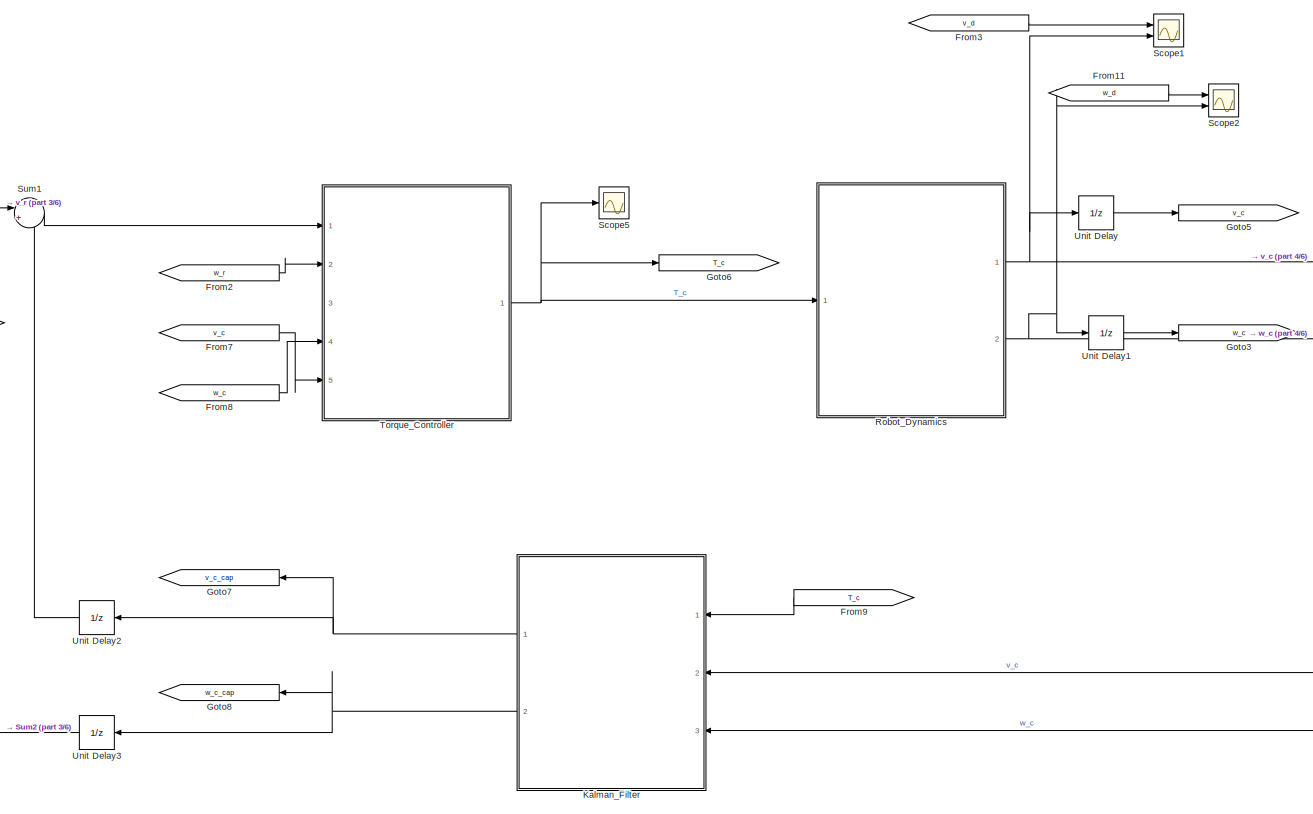
[diagram: root canvas - part 1/6, middle right region]
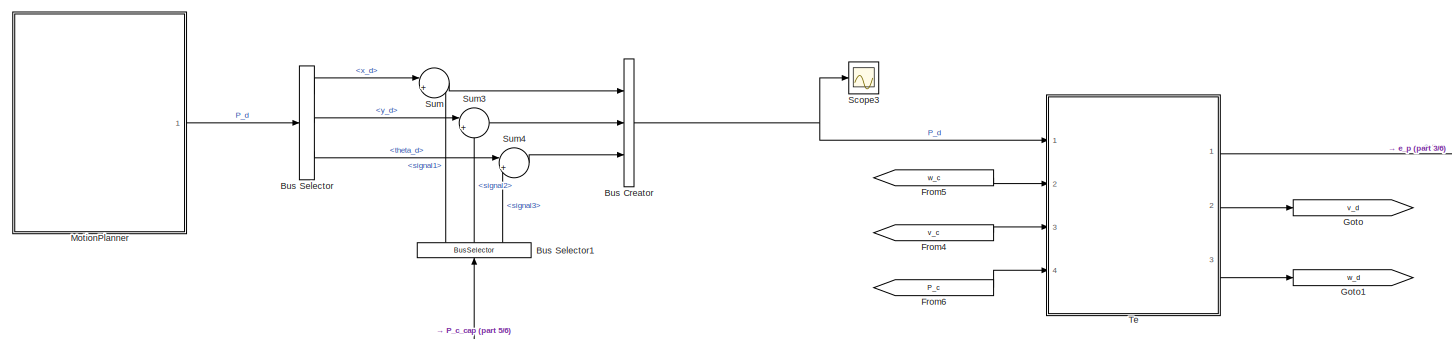
[diagram: root canvas - part 2/6, top left region]
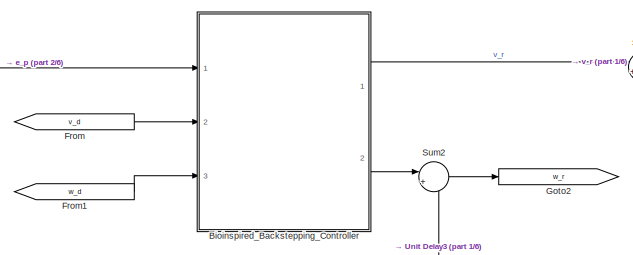
[diagram: root canvas - part 3/6, top center region]
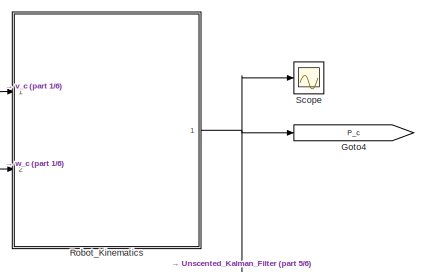
[diagram: root canvas - part 4/6, top right region]
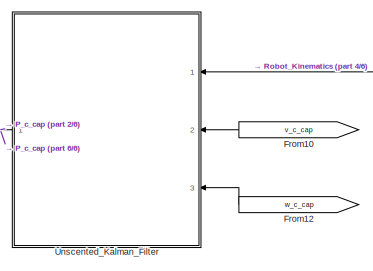
[diagram: root canvas - part 5/6, bottom center region]
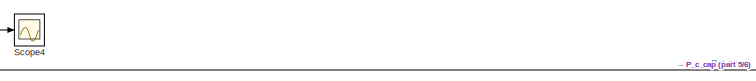
[diagram: root canvas - part 6/6, bottom left region]
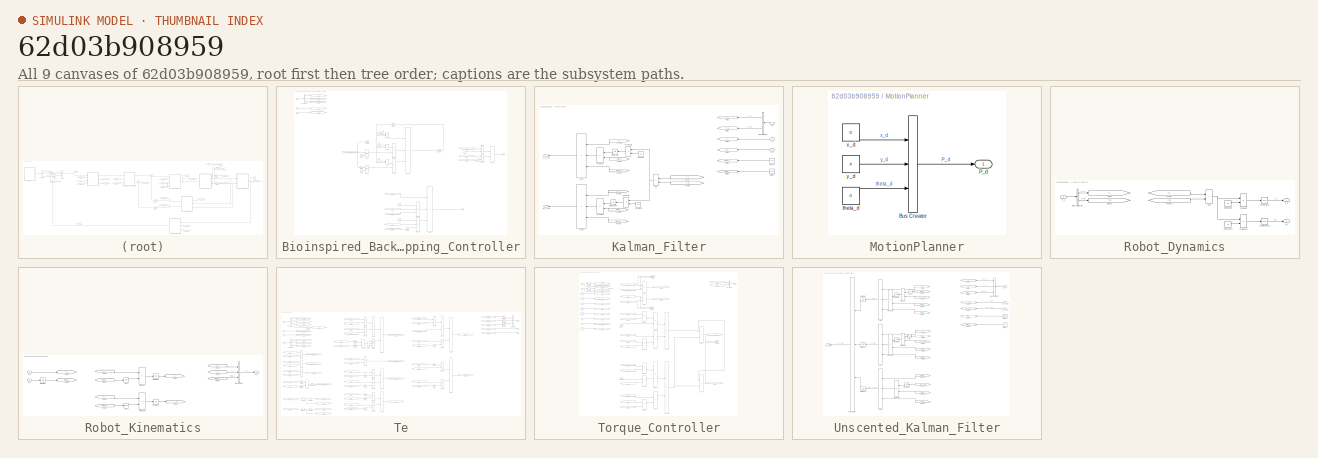
[diagram: thumbnail index - all 9 canvases of the model, root first then tree order]
MODEL slx_62d03b908959
KIND model
CONFIG AbsTol = auto
CONFIG EnableMultiTasking = off
CONFIG FixedStep = 0.01
CONFIG MaxStep = auto
CONFIG MinStep = auto
CONFIG RelTol = 1e-3
CONFIG SampleTimeConstraint = Unconstrained
CONFIG SolverName = FixedStepAuto
CONFIG StartTime = 0.0
CONFIG StopTime = 10
BLOCK [SubSystem] Bioinspired_Backstepping_Controller
  Ports = [3, 2]
  RequestExecContextInheritance = off
  TreatAsAtomicUnit = on
BLOCK [Constant] Bioinspired_Backstepping_Controller/A1
  Commented = on
  Value = 5
BLOCK [Sum] Bioinspired_Backstepping_Controller/Add1
  Commented = on
  IconShape = rectangular
  Inputs = +-
  Ports = [2, 1]
BLOCK [Sum] Bioinspired_Backstepping_Controller/Add2
  Commented = on
  IconShape = rectangular
  Ports = [2, 1]
BLOCK [Sum] Bioinspired_Backstepping_Controller/Add3
  Commented = on
  IconShape = rectangular
  Inputs = +++
  Ports = [3, 1]
BLOCK [Sum] Bioinspired_Backstepping_Controller/Add4
  IconShape = rectangular
  Ports = [2, 1]
BLOCK [Sum] Bioinspired_Backstepping_Controller/Add5
  IconShape = rectangular
  Inputs = +++
  Ports = [3, 1]
BLOCK [Constant] Bioinspired_Backstepping_Controller/B1
  Commented = on
  Value = 3
BLOCK [BusSelector] Bioinspired_Backstepping_Controller/Bus Selector
  OutputSignals = e_D,e_L,e_theta
  Ports = [1, 3]
BLOCK [Constant] Bioinspired_Backstepping_Controller/C1
BLOCK [Constant] Bioinspired_Backstepping_Controller/C2
  Value = 5
BLOCK [Constant] Bioinspired_Backstepping_Controller/C3
  Value = 2
BLOCK [Trigonometry] Bioinspired_Backstepping_Controller/Cos
  Operator = cos
  Ports = [1, 1]
BLOCK [Constant] Bioinspired_Backstepping_Controller/D1
  Commented = on
  Value = 3
BLOCK [From] Bioinspired_Backstepping_Controller/From
  GotoTag = v_d
BLOCK [From] Bioinspired_Backstepping_Controller/From1
  GotoTag = e_theta
BLOCK [From] Bioinspired_Backstepping_Controller/From2
  Commented = on
  GotoTag = e_D
BLOCK [From] Bioinspired_Backstepping_Controller/From3
  GotoTag = w_d
BLOCK [From] Bioinspired_Backstepping_Controller/From4
  GotoTag = v_d
BLOCK [From] Bioinspired_Backstepping_Controller/From5
  GotoTag = e_L
BLOCK [From] Bioinspired_Backstepping_Controller/From6
  GotoTag = v_d
BLOCK [From] Bioinspired_Backstepping_Controller/From7
  GotoTag = e_theta
BLOCK [From] Bioinspired_Backstepping_Controller/From8
  GotoTag = e_D
BLOCK [Gain] Bioinspired_Backstepping_Controller/Gain
  Commented = on
  Gain = -1
BLOCK [Goto] Bioinspired_Backstepping_Controller/Goto
  GotoTag = e_D
BLOCK [Goto] Bioinspired_Backstepping_Controller/Goto1
  GotoTag = e_L
BLOCK [Goto] Bioinspired_Backstepping_Controller/Goto2
  GotoTag = e_theta
BLOCK [Goto] Bioinspired_Backstepping_Controller/Goto3
  GotoTag = v_d
BLOCK [Goto] Bioinspired_Backstepping_Controller/Goto4
  GotoTag = w_d
BLOCK [Integrator] Bioinspired_Backstepping_Controller/Integrator
  Commented = on
  Ports = [1, 1]
BLOCK [MinMax] Bioinspired_Backstepping_Controller/Max
  Commented = on
  Function = max
  Inputs = 2
  Ports = [2, 1]
BLOCK [MinMax] Bioinspired_Backstepping_Controller/Max1
  Commented = on
  Function = max
  Inputs = 2
  Ports = [2, 1]
BLOCK [Gain] Bioinspired_Backstepping_Controller/Multiply
  Commented = on
  Gain = -1
BLOCK [Product] Bioinspired_Backstepping_Controller/Product
  Commented = on
  Ports = [2, 1]
BLOCK [Product] Bioinspired_Backstepping_Controller/Product1
  Commented = on
  Ports = [2, 1]
BLOCK [Product] Bioinspired_Backstepping_Controller/Product2
  Commented = on
  Ports = [2, 1]
BLOCK [Product] Bioinspired_Backstepping_Controller/Product3
  Ports = [2, 1]
BLOCK [Product] Bioinspired_Backstepping_Controller/Product4
  Inputs = 3
  Ports = [3, 1]
BLOCK [Product] Bioinspired_Backstepping_Controller/Product5
  Inputs = 3
  Ports = [3, 1]
BLOCK [Product] Bioinspired_Backstepping_Controller/Product6
  Ports = [2, 1]
BLOCK [Scope] Bioinspired_Backstepping_Controller/Scope
  Commented = on
  Floating = off
  NumInputPorts = 1
  Ports = [1]
  ScopeSpecificationString = Simulink.scopes.TimeScopeBlockCfg('CurrentConfiguration', extmgr.ConfigurationSet(extmgr.Configuration('Core','General UI',true),extmgr.Configuration('Core','Source UI',true),extmgr.Configuration('Sources','WiredSimulink',true,'DataLoggingVariableName','ScopeData6'),extmgr.Configuration('Visuals','Time Domain',true,'SerializedDisplays',{struct('MinYLimReal','-0.50396','MaxYLimReal','4.53564','YLab...<+1364ch>
BLOCK [Trigonometry] Bioinspired_Backstepping_Controller/Sin
  Ports = [1, 1]
BLOCK [UnitDelay] Bioinspired_Backstepping_Controller/Unit Delay1
  Commented = on
  HasFrameUpgradeWarning = on
  SampleTime = -1
BLOCK [Inport] Bioinspired_Backstepping_Controller/e_p
BLOCK [Inport] Bioinspired_Backstepping_Controller/v_d
  Port = 2
BLOCK [Outport] Bioinspired_Backstepping_Controller/v_r
BLOCK [Inport] Bioinspired_Backstepping_Controller/w_d
  Port = 3
BLOCK [Outport] Bioinspired_Backstepping_Controller/w_r
  Port = 2
BLOCK [Constant] Bioinspired_Backstepping_Controller/zero
  Commented = on
  Value = 0
BLOCK [Constant] Bioinspired_Backstepping_Controller/zero1
  Commented = on
  Value = 0
BLOCK [BusCreator] Bus Creator
  DisplayOption = bar
  InheritFromInputs = on
  Inputs = 3
  Ports = [3, 1]
BLOCK [BusSelector] Bus Selector
  OutputSignals = x_d,y_d,theta_d
  Ports = [1, 3]
BLOCK [BusSelector] Bus Selector1
  NameLocation = right
  OutputSignals = signal1,signal2,signal3
  Ports = [1, 3]
BLOCK [From] From
  GotoTag = v_d
BLOCK [From] From1
  GotoTag = w_d
BLOCK [From] From10
  GotoTag = v_c_cap
BLOCK [From] From11
  GotoTag = w_d
BLOCK [From] From12
  GotoTag = w_c_cap
BLOCK [From] From2
  GotoTag = w_r
BLOCK [From] From3
  GotoTag = v_d
BLOCK [From] From4
  GotoTag = v_c
BLOCK [From] From5
  GotoTag = w_c
BLOCK [From] From6
  GotoTag = P_c
BLOCK [From] From7
  GotoTag = v_c
BLOCK [From] From8
  GotoTag = w_c
BLOCK [From] From9
  GotoTag = T_c
BLOCK [Goto] Goto
  GotoTag = v_d
BLOCK [Goto] Goto1
  GotoTag = w_d
BLOCK [Goto] Goto2
  GotoTag = w_r
BLOCK [Goto] Goto3
  GotoTag = w_c
BLOCK [Goto] Goto4
  GotoTag = P_c
BLOCK [Goto] Goto5
  GotoTag = v_c
BLOCK [Goto] Goto6
  GotoTag = T_c
BLOCK [Goto] Goto7
  GotoTag = v_c_cap
BLOCK [Goto] Goto8
  GotoTag = w_c_cap
BLOCK [SubSystem] Kalman_Filter
  Ports = [3, 2]
  RequestExecContextInheritance = off
  TreatAsAtomicUnit = on
BLOCK [Sum] Kalman_Filter/Add
  IconShape = rectangular
  Ports = [2, 1]
BLOCK [Sum] Kalman_Filter/Add1
  IconShape = rectangular
  Inputs = +++
  Ports = [3, 1]
BLOCK [Sum] Kalman_Filter/Add2
  IconShape = rectangular
  Inputs = +++
  Ports = [3, 1]
BLOCK [BusSelector] Kalman_Filter/Bus Selector
  OutputSignals = T_L,T_R
  Ports = [1, 2]
BLOCK [Constant] Kalman_Filter/Constant
  Value = 0.1
BLOCK [Constant] Kalman_Filter/Constant1
  Value = 10
BLOCK [From] Kalman_Filter/From
  GotoTag = T_L
BLOCK [From] Kalman_Filter/From1
  GotoTag = T_R
BLOCK [From] Kalman_Filter/From2
  GotoTag = v_c
BLOCK [From] Kalman_Filter/From3
  GotoTag = delta_t
BLOCK [From] Kalman_Filter/From4
  GotoTag = alpha_k
BLOCK [From] Kalman_Filter/From5
  GotoTag = w_c
BLOCK [From] Kalman_Filter/From6
  GotoTag = delta_t
BLOCK [From] Kalman_Filter/From7
  GotoTag = alpha_k
BLOCK [Goto] Kalman_Filter/Goto
  GotoTag = T_L
BLOCK [Goto] Kalman_Filter/Goto1
  GotoTag = T_R
BLOCK [Goto] Kalman_Filter/Goto2
  GotoTag = v_c
BLOCK [Goto] Kalman_Filter/Goto3
  GotoTag = w_c
BLOCK [Goto] Kalman_Filter/Goto4
  GotoTag = alpha_k
BLOCK [Goto] Kalman_Filter/Goto5
  GotoTag = delta_t
BLOCK [Integrator] Kalman_Filter/Integrator
  Ports = [1, 1]
BLOCK [Integrator] Kalman_Filter/Integrator1
  Ports = [1, 1]
BLOCK [Product] Kalman_Filter/Product
  Ports = [2, 1]
BLOCK [Product] Kalman_Filter/Product1
  Ports = [2, 1]
BLOCK [Product] Kalman_Filter/Product2
  Inputs = **
  Ports = [2, 1]
BLOCK [Product] Kalman_Filter/Product3
  Inputs = **
  Ports = [2, 1]
BLOCK [Inport] Kalman_Filter/T_c
BLOCK [Constant] Kalman_Filter/alpha_k
  Value = 30
BLOCK [Constant] Kalman_Filter/delta_t
  Value = 0.01
BLOCK [Inport] Kalman_Filter/v_c
  Port = 2
BLOCK [Outport] Kalman_Filter/v_c_cap
BLOCK [Inport] Kalman_Filter/w_c
  Port = 3
BLOCK [Outport] Kalman_Filter/w_c_cap
  Port = 2
BLOCK [SubSystem] MotionPlanner
  Ports = [0, 1]
  RequestExecContextInheritance = off
BLOCK [BusCreator] MotionPlanner/Bus Creator
  DisplayOption = bar
  InheritFromInputs = on
  Inputs = 3
  Ports = [3, 1]
BLOCK [Outport] MotionPlanner/P_d
BLOCK [Constant] MotionPlanner/theta_d
  Value = 0
BLOCK [Constant] MotionPlanner/x_d
  Value = 0
BLOCK [Constant] MotionPlanner/y_d
  Value = 4
BLOCK [SubSystem] Robot_Dynamics
  MinAlgLoopOccurrences = on
  Ports = [1, 2]
  RequestExecContextInheritance = off
  TreatAsAtomicUnit = on
BLOCK [Sum] Robot_Dynamics/Add
  IconShape = rectangular
  Ports = [2, 1]
BLOCK [BusSelector] Robot_Dynamics/Bus Selector
  OutputSignals = T_L,T_R
  Ports = [1, 2]
BLOCK [Constant] Robot_Dynamics/Constant
  Value = 0.1
BLOCK [Constant] Robot_Dynamics/Constant1
  Value = 10
BLOCK [From] Robot_Dynamics/From
  GotoTag = T_L
BLOCK [From] Robot_Dynamics/From1
  GotoTag = T_R
BLOCK [Goto] Robot_Dynamics/Goto
  GotoTag = T_L
BLOCK [Goto] Robot_Dynamics/Goto1
  GotoTag = T_R
BLOCK [Integrator] Robot_Dynamics/Integrator
  Ports = [1, 1]
BLOCK [Integrator] Robot_Dynamics/Integrator1
  Ports = [1, 1]
BLOCK [Product] Robot_Dynamics/Product
  Inputs = **
  Ports = [2, 1]
BLOCK [Product] Robot_Dynamics/Product1
  Inputs = **
  Ports = [2, 1]
BLOCK [Inport] Robot_Dynamics/T_c
BLOCK [Outport] Robot_Dynamics/v_c
BLOCK [Outport] Robot_Dynamics/w_c
  Port = 2
BLOCK [SubSystem] Robot_Kinematics
  MinAlgLoopOccurrences = on
  Ports = [2, 1]
  RequestExecContextInheritance = off
  TreatAsAtomicUnit = on
BLOCK [BusCreator] Robot_Kinematics/Bus Creator
  DisplayOption = bar
  InheritFromInputs = on
  Inputs = 3
  Ports = [3, 1]
BLOCK [Trigonometry] Robot_Kinematics/Cos
  Operator = cos
  Ports = [1, 1]
BLOCK [From] Robot_Kinematics/From
  GotoTag = theta_c
BLOCK [From] Robot_Kinematics/From1
  GotoTag = v_c
BLOCK [From] Robot_Kinematics/From2
  GotoTag = theta_c
BLOCK [From] Robot_Kinematics/From3
  GotoTag = v_c
BLOCK [From] Robot_Kinematics/From4
  GotoTag = x_c
BLOCK [From] Robot_Kinematics/From5
  GotoTag = y_c
BLOCK [From] Robot_Kinematics/From6
  GotoTag = theta_c
BLOCK [Goto] Robot_Kinematics/Goto2
  GotoTag = theta_c
BLOCK [Goto] Robot_Kinematics/Goto3
  GotoTag = x_c
BLOCK [Goto] Robot_Kinematics/Goto4
  GotoTag = v_c
BLOCK [Goto] Robot_Kinematics/Goto5
  GotoTag = y_c
BLOCK [Integrator] Robot_Kinematics/Integrator
  Ports = [1, 1]
BLOCK [Integrator] Robot_Kinematics/Integrator1
  Ports = [1, 1]
BLOCK [Integrator] Robot_Kinematics/Integrator2
  Ports = [1, 1]
BLOCK [Outport] Robot_Kinematics/P_c
BLOCK [Product] Robot_Kinematics/Product
  Ports = [2, 1]
BLOCK [Product] Robot_Kinematics/Product1
  Ports = [2, 1]
BLOCK [Trigonometry] Robot_Kinematics/Sin
  Ports = [1, 1]
BLOCK [Inport] Robot_Kinematics/v_c
BLOCK [Inport] Robot_Kinematics/w_c
  Port = 2
BLOCK [Scope] Scope
  Floating = off
  NumInputPorts = 1
  Ports = [1]
  ScopeSpecificationString = Simulink.scopes.TimeScopeBlockCfg('CurrentConfiguration', extmgr.ConfigurationSet(extmgr.Configuration('Core','General UI',true),extmgr.Configuration('Core','Source UI',true),extmgr.Configuration('Sources','WiredSimulink',true),extmgr.Configuration('Visuals','Time Domain',true,'SerializedDisplays',{struct('MinYLimReal','-1652143645366132068793695046733050304306085888.00000','MaxYLimReal','49233210...<+1912ch>
BLOCK [Scope] Scope1
  Floating = off
  NumInputPorts = 2
  Ports = [2]
  ScopeSpecificationString = Simulink.scopes.TimeScopeBlockCfg('CurrentConfiguration', extmgr.ConfigurationSet(extmgr.Configuration('Core','General UI',true),extmgr.Configuration('Core','Source UI',true),extmgr.Configuration('Sources','WiredSimulink',true,'DataLoggingVariableName','ScopeData3'),extmgr.Configuration('Visuals','Time Domain',true,'SerializedDisplays',{struct('MinYLimReal','-0.57297','MaxYLimReal','4.50811','YLab...<+1487ch>
BLOCK [Scope] Scope2
  Floating = off
  NumInputPorts = 2
  Ports = [2]
  ScopeSpecificationString = Simulink.scopes.TimeScopeBlockCfg('CurrentConfiguration', extmgr.ConfigurationSet(extmgr.Configuration('Core','General UI',true),extmgr.Configuration('Core','Source UI',true),extmgr.Configuration('Sources','WiredSimulink',true,'DataLoggingVariableName','ScopeData4'),extmgr.Configuration('Visuals','Time Domain',true,'SerializedDisplays',{struct('MinYLimReal','-52361757783011613632282967427851362499...<+3576ch>
BLOCK [Scope] Scope3
  Floating = off
  NumInputPorts = 1
  Ports = [1]
  ScopeSpecificationString = Simulink.scopes.TimeScopeBlockCfg('CurrentConfiguration', extmgr.ConfigurationSet(extmgr.Configuration('Core','General UI',true),extmgr.Configuration('Core','Source UI',true),extmgr.Configuration('Sources','WiredSimulink',true,'DataLoggingVariableName','ScopeData1'),extmgr.Configuration('Visuals','Time Domain',true,'SerializedDisplays',{struct('MinYLimReal','-21.95816','MaxYLimReal','6.88424','YLa...<+1855ch>
BLOCK [Scope] Scope4
  Floating = off
  NumInputPorts = 1
  Ports = [1]
  ScopeSpecificationString = Simulink.scopes.TimeScopeBlockCfg('CurrentConfiguration', extmgr.ConfigurationSet(extmgr.Configuration('Core','General UI',true),extmgr.Configuration('Core','Source UI',true),extmgr.Configuration('Sources','WiredSimulink',true,'DataLoggingVariableName','ScopeData2'),extmgr.Configuration('Visuals','Time Domain',true,'SerializedDisplays',{struct('MinYLimReal','-2.38424','MaxYLimReal','21.45816','YLa...<+1878ch>
BLOCK [Scope] Scope5
  Floating = off
  NumInputPorts = 1
  Ports = [1]
  ScopeSpecificationString = Simulink.scopes.TimeScopeBlockCfg('CurrentConfiguration', extmgr.ConfigurationSet(extmgr.Configuration('Core','General UI',true),extmgr.Configuration('Core','Source UI',true),extmgr.Configuration('Sources','WiredSimulink',true,'DataLoggingVariableName','ScopeData1'),extmgr.Configuration('Visuals','Time Domain',true,'SerializedDisplays',{struct('MinYLimReal','-69815170379449732064898979519840717863...<+3614ch>
BLOCK [Sum] Sum
  Inputs = |+-
  Ports = [2, 1]
BLOCK [Sum] Sum1
  Inputs = |+-
  Ports = [2, 1]
BLOCK [Sum] Sum2
  Inputs = |+-
  Ports = [2, 1]
BLOCK [Sum] Sum3
  Inputs = |+-
  Ports = [2, 1]
BLOCK [Sum] Sum4
  Inputs = |+-
  Ports = [2, 1]
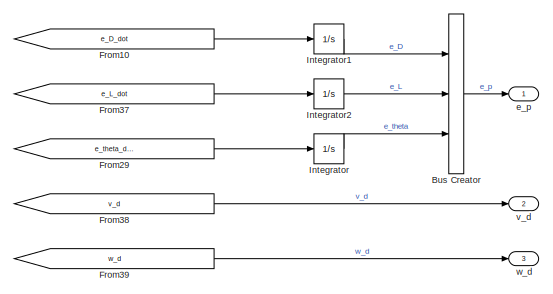
[diagram: Te - part 1/5, top right region]
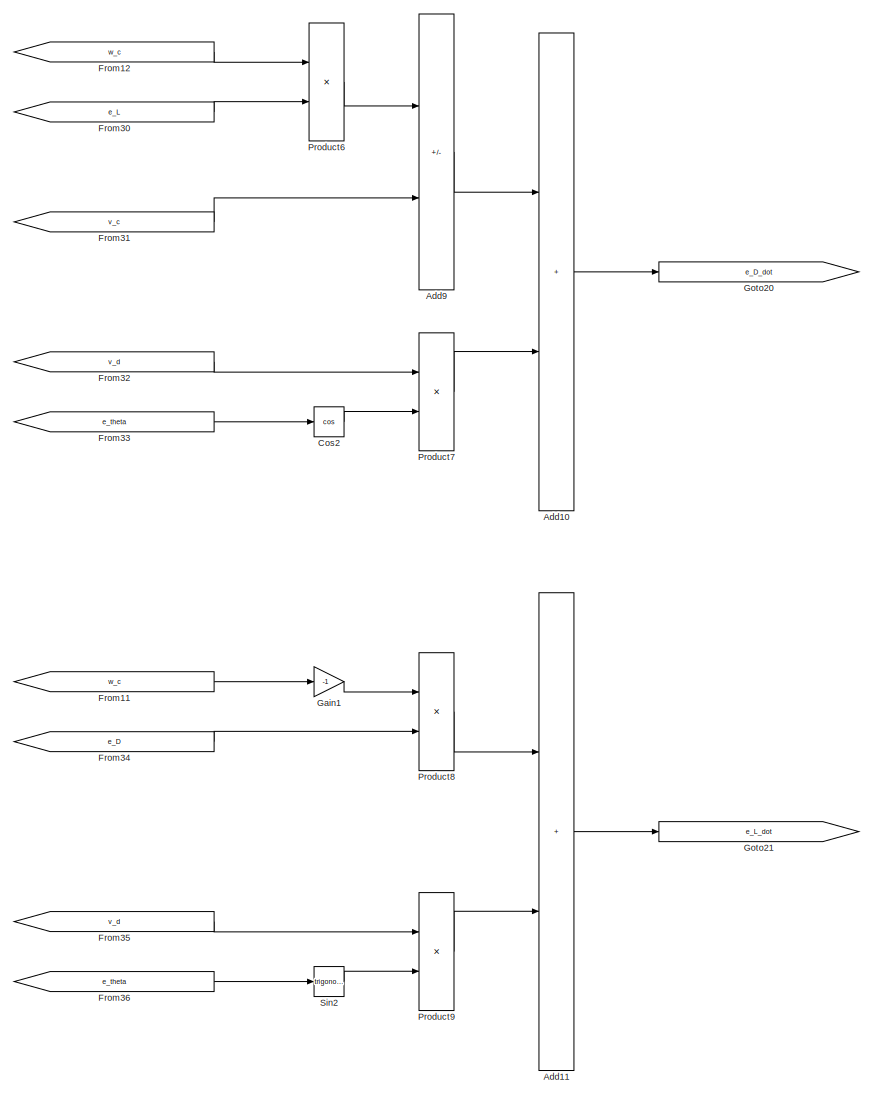
[diagram: Te - part 2/5, right side, full height]
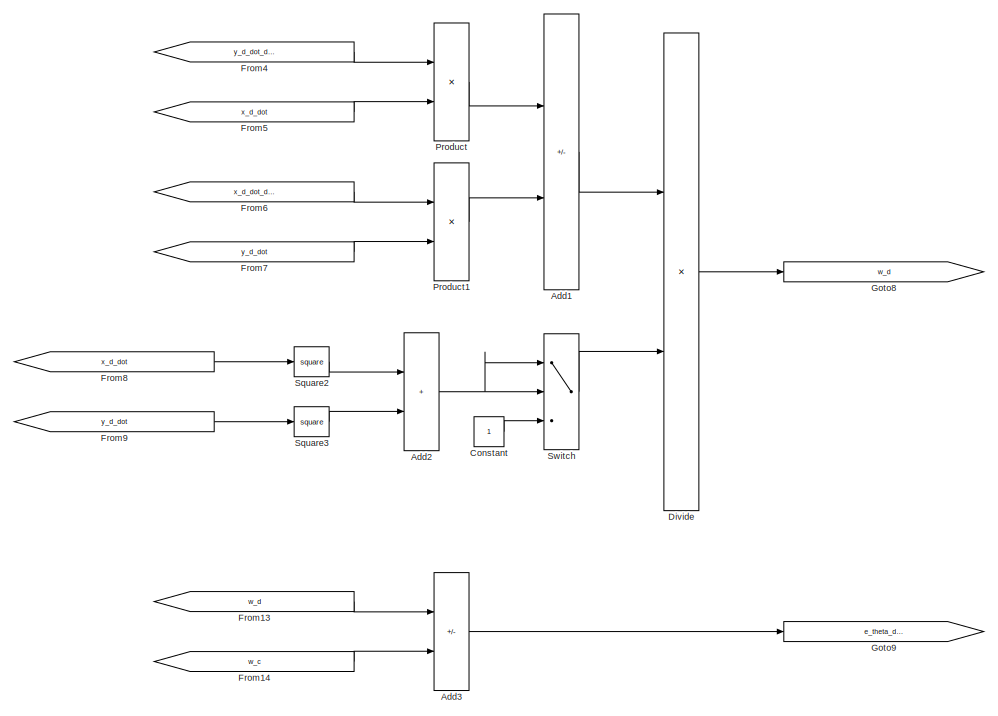
[diagram: Te - part 3/5, top center region]
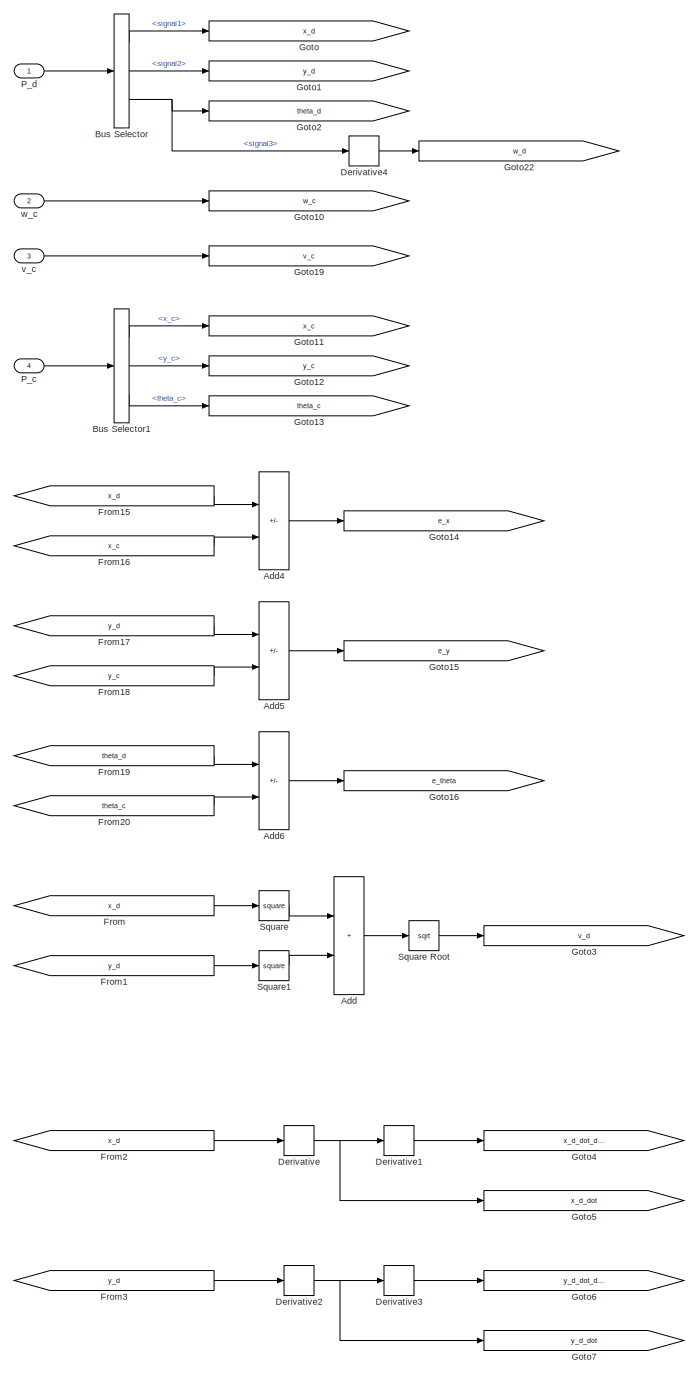
[diagram: Te - part 4/5, left side, full height]
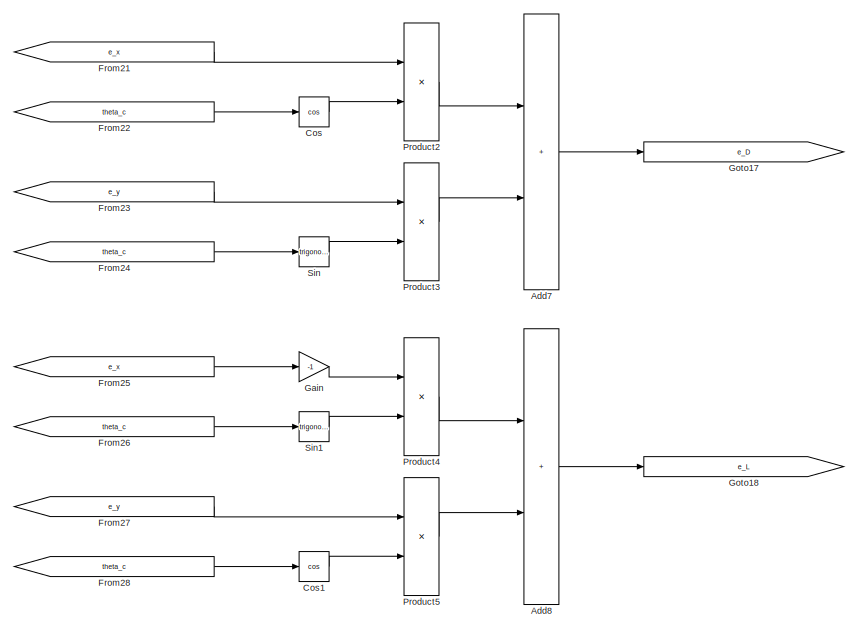
[diagram: Te - part 5/5, bottom center region]
BLOCK [SubSystem] Te
  Ports = [4, 3]
  RequestExecContextInheritance = off
  TreatAsAtomicUnit = on
BLOCK [Sum] Te/Add
  IconShape = rectangular
  Ports = [2, 1]
BLOCK [Sum] Te/Add1
  IconShape = rectangular
  Inputs = +-
  Ports = [2, 1]
BLOCK [Sum] Te/Add10
  IconShape = rectangular
  Ports = [2, 1]
BLOCK [Sum] Te/Add11
  IconShape = rectangular
  Ports = [2, 1]
BLOCK [Sum] Te/Add2
  IconShape = rectangular
  OutMin = 0.1
  Ports = [2, 1]
BLOCK [Sum] Te/Add3
  IconShape = rectangular
  Inputs = +-
  Ports = [2, 1]
BLOCK [Sum] Te/Add4
  IconShape = rectangular
  Inputs = +-
  Ports = [2, 1]
BLOCK [Sum] Te/Add5
  IconShape = rectangular
  Inputs = +-
  Ports = [2, 1]
BLOCK [Sum] Te/Add6
  IconShape = rectangular
  Inputs = +-
  Ports = [2, 1]
BLOCK [Sum] Te/Add7
  IconShape = rectangular
  Ports = [2, 1]
BLOCK [Sum] Te/Add8
  IconShape = rectangular
  Ports = [2, 1]
BLOCK [Sum] Te/Add9
  IconShape = rectangular
  Inputs = +-
  Ports = [2, 1]
BLOCK [BusCreator] Te/Bus Creator
  DisplayOption = bar
  InheritFromInputs = on
  Inputs = 3
  Ports = [3, 1]
BLOCK [BusSelector] Te/Bus Selector
  OutputSignals = signal1,signal2,signal3
  Ports = [1, 3]
BLOCK [BusSelector] Te/Bus Selector1
  OutputSignals = x_c,y_c,theta_c
  Ports = [1, 3]
BLOCK [Constant] Te/Constant
BLOCK [Trigonometry] Te/Cos
  Operator = cos
  Ports = [1, 1]
BLOCK [Trigonometry] Te/Cos1
  Operator = cos
  Ports = [1, 1]
BLOCK [Trigonometry] Te/Cos2
  Operator = cos
  Ports = [1, 1]
BLOCK [Derivative] Te/Derivative
BLOCK [Derivative] Te/Derivative1
BLOCK [Derivative] Te/Derivative2
BLOCK [Derivative] Te/Derivative3
BLOCK [Derivative] Te/Derivative4
  Commented = on
BLOCK [Product] Te/Divide
  Inputs = */
  Ports = [2, 1]
BLOCK [From] Te/From
  GotoTag = x_d
BLOCK [From] Te/From1
  GotoTag = y_d
BLOCK [From] Te/From10
  GotoTag = e_D_dot
BLOCK [From] Te/From11
  GotoTag = w_c
BLOCK [From] Te/From12
  GotoTag = w_c
BLOCK [From] Te/From13
  GotoTag = w_d
BLOCK [From] Te/From14
  GotoTag = w_c
BLOCK [From] Te/From15
  GotoTag = x_d
BLOCK [From] Te/From16
  GotoTag = x_c
BLOCK [From] Te/From17
  GotoTag = y_d
BLOCK [From] Te/From18
  GotoTag = y_c
BLOCK [From] Te/From19
  GotoTag = theta_d
BLOCK [From] Te/From2
  GotoTag = x_d
BLOCK [From] Te/From20
  GotoTag = theta_c
BLOCK [From] Te/From21
  GotoTag = e_x
BLOCK [From] Te/From22
  GotoTag = theta_c
BLOCK [From] Te/From23
  GotoTag = e_y
BLOCK [From] Te/From24
  GotoTag = theta_c
BLOCK [From] Te/From25
  GotoTag = e_x
BLOCK [From] Te/From26
  GotoTag = theta_c
BLOCK [From] Te/From27
  GotoTag = e_y
BLOCK [From] Te/From28
  GotoTag = theta_c
BLOCK [From] Te/From29
  GotoTag = e_theta_dot
BLOCK [From] Te/From3
  GotoTag = y_d
BLOCK [From] Te/From30
  GotoTag = e_L
BLOCK [From] Te/From31
  GotoTag = v_c
BLOCK [From] Te/From32
  GotoTag = v_d
BLOCK [From] Te/From33
  GotoTag = e_theta
BLOCK [From] Te/From34
  GotoTag = e_D
BLOCK [From] Te/From35
  GotoTag = v_d
BLOCK [From] Te/From36
  GotoTag = e_theta
BLOCK [From] Te/From37
  GotoTag = e_L_dot
BLOCK [From] Te/From38
  GotoTag = v_d
BLOCK [From] Te/From39
  GotoTag = w_d
BLOCK [From] Te/From4
  GotoTag = y_d_dot_dot
BLOCK [From] Te/From5
  GotoTag = x_d_dot
BLOCK [From] Te/From6
  GotoTag = x_d_dot_dot
BLOCK [From] Te/From7
  GotoTag = y_d_dot
BLOCK [From] Te/From8
  GotoTag = x_d_dot
BLOCK [From] Te/From9
  GotoTag = y_d_dot
BLOCK [Gain] Te/Gain
  Gain = -1
BLOCK [Gain] Te/Gain1
  Gain = -1
BLOCK [Goto] Te/Goto
  GotoTag = x_d
BLOCK [Goto] Te/Goto1
  GotoTag = y_d
BLOCK [Goto] Te/Goto10
  GotoTag = w_c
BLOCK [Goto] Te/Goto11
  GotoTag = x_c
BLOCK [Goto] Te/Goto12
  GotoTag = y_c
BLOCK [Goto] Te/Goto13
  GotoTag = theta_c
BLOCK [Goto] Te/Goto14
  GotoTag = e_x
BLOCK [Goto] Te/Goto15
  GotoTag = e_y
BLOCK [Goto] Te/Goto16
  GotoTag = e_theta
BLOCK [Goto] Te/Goto17
  GotoTag = e_D
BLOCK [Goto] Te/Goto18
  GotoTag = e_L
BLOCK [Goto] Te/Goto19
  GotoTag = v_c
BLOCK [Goto] Te/Goto2
  GotoTag = theta_d
BLOCK [Goto] Te/Goto20
  GotoTag = e_D_dot
BLOCK [Goto] Te/Goto21
  GotoTag = e_L_dot
BLOCK [Goto] Te/Goto22
  Commented = on
  GotoTag = w_d
BLOCK [Goto] Te/Goto3
  GotoTag = v_d
BLOCK [Goto] Te/Goto4
  GotoTag = x_d_dot_dot
BLOCK [Goto] Te/Goto5
  GotoTag = x_d_dot
BLOCK [Goto] Te/Goto6
  GotoTag = y_d_dot_dot
BLOCK [Goto] Te/Goto7
  GotoTag = y_d_dot
BLOCK [Goto] Te/Goto8
  GotoTag = w_d
BLOCK [Goto] Te/Goto9
  GotoTag = e_theta_dot
BLOCK [Integrator] Te/Integrator
  Ports = [1, 1]
BLOCK [Integrator] Te/Integrator1
  Ports = [1, 1]
BLOCK [Integrator] Te/Integrator2
  Ports = [1, 1]
BLOCK [Inport] Te/P_c
  Port = 4
BLOCK [Inport] Te/P_d
BLOCK [Product] Te/Product
  Ports = [2, 1]
BLOCK [Product] Te/Product1
  Ports = [2, 1]
BLOCK [Product] Te/Product2
  Ports = [2, 1]
BLOCK [Product] Te/Product3
  Ports = [2, 1]
BLOCK [Product] Te/Product4
  Ports = [2, 1]
BLOCK [Product] Te/Product5
  Ports = [2, 1]
BLOCK [Product] Te/Product6
  Ports = [2, 1]
BLOCK [Product] Te/Product7
  Ports = [2, 1]
BLOCK [Product] Te/Product8
  Ports = [2, 1]
BLOCK [Product] Te/Product9
  Ports = [2, 1]
BLOCK [Trigonometry] Te/Sin
  Ports = [1, 1]
BLOCK [Trigonometry] Te/Sin1
  Ports = [1, 1]
BLOCK [Trigonometry] Te/Sin2
  Ports = [1, 1]
BLOCK [Math] Te/Square
  Operator = square
  Ports = [1, 1]
BLOCK [Sqrt] Te/Square Root
BLOCK [Math] Te/Square1
  Operator = square
  Ports = [1, 1]
BLOCK [Math] Te/Square2
  Operator = square
  Ports = [1, 1]
BLOCK [Math] Te/Square3
  Operator = square
  Ports = [1, 1]
BLOCK [Switch] Te/Switch
  Criteria = u2 ~= 0
  InputSameDT = off
  SaturateOnIntegerOverflow = off
BLOCK [Outport] Te/e_p
BLOCK [Inport] Te/v_c
  Port = 3
BLOCK [Outport] Te/v_d
  Port = 2
BLOCK [Inport] Te/w_c
  Port = 2
BLOCK [Outport] Te/w_d
  Port = 3
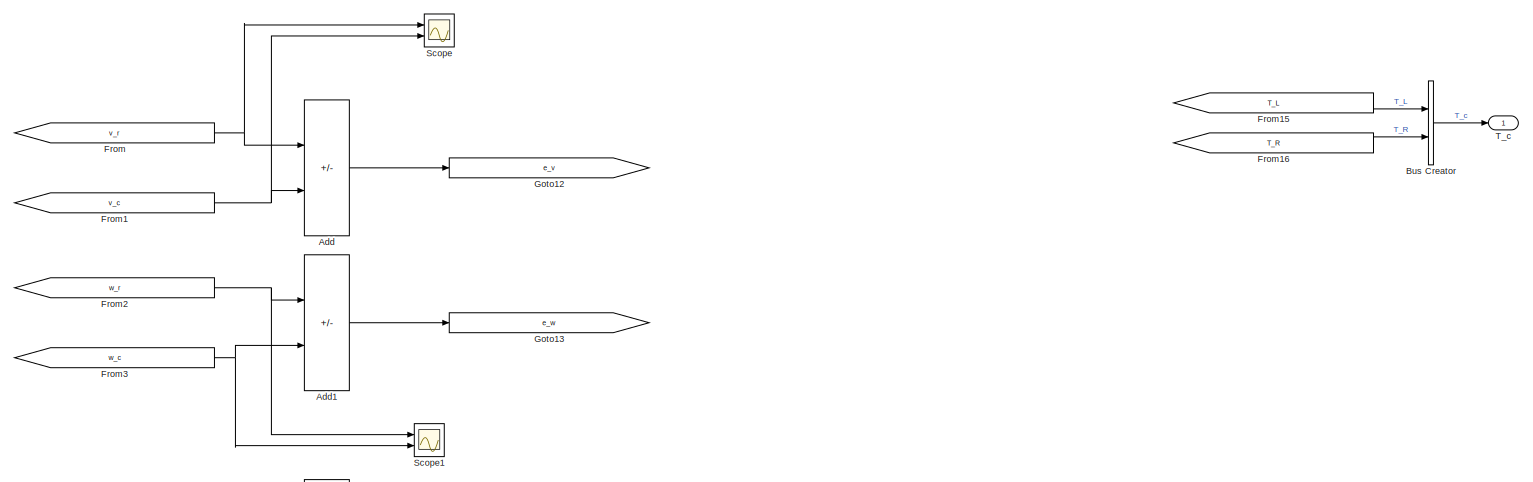
[diagram: Torque_Controller - part 1/4, full width, top band]
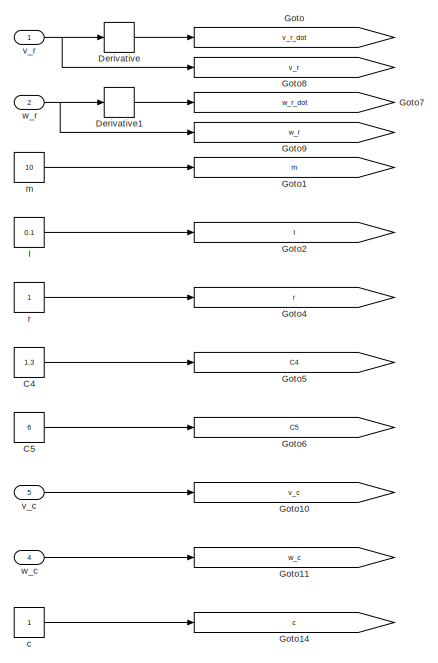
[diagram: Torque_Controller - part 2/4, top left region]
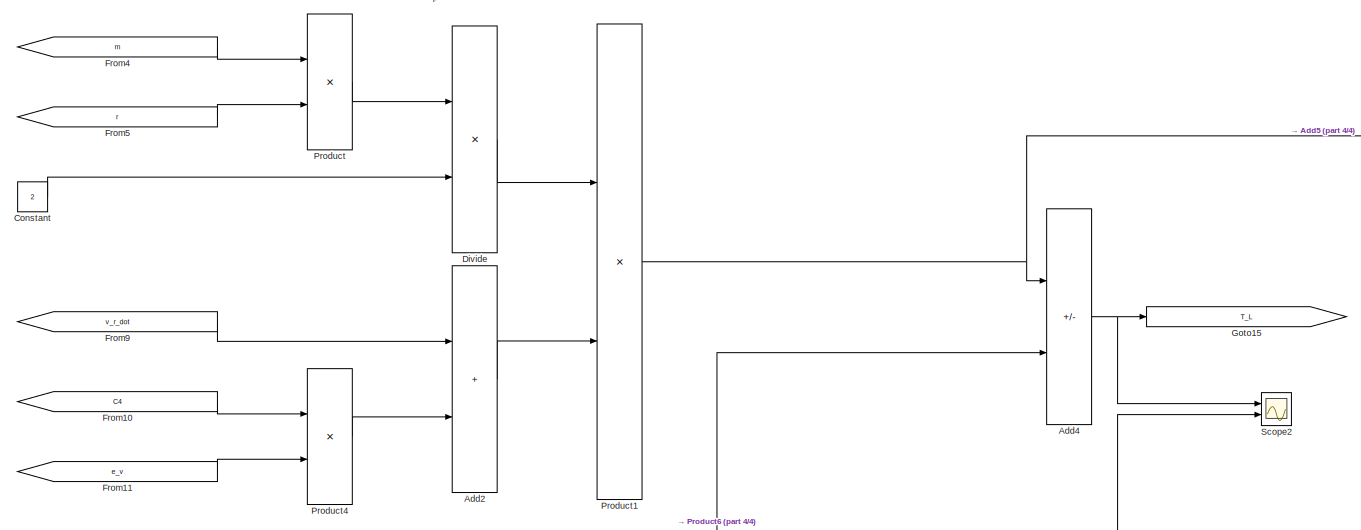
[diagram: Torque_Controller - part 3/4, central region]
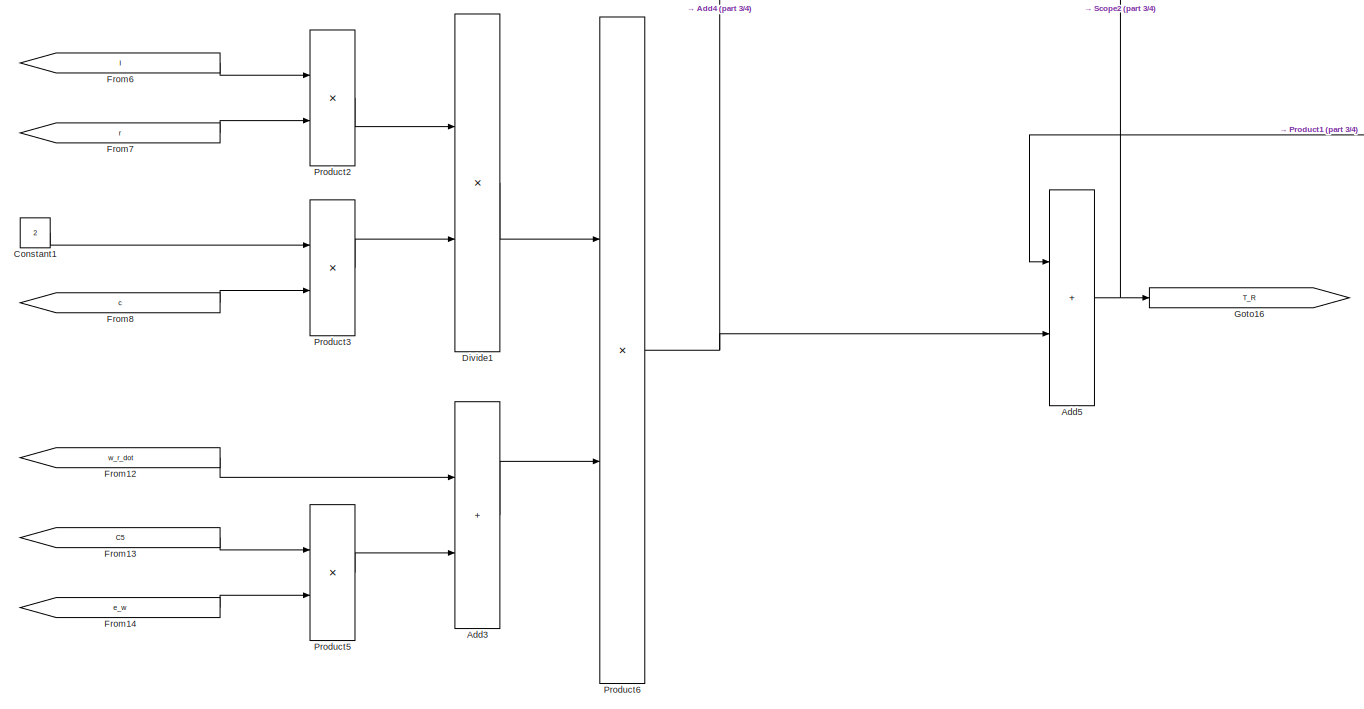
[diagram: Torque_Controller - part 4/4, bottom center region]
BLOCK [SubSystem] Torque_Controller
  Ports = [5, 1]
  RequestExecContextInheritance = off
  TreatAsAtomicUnit = on
BLOCK [Sum] Torque_Controller/Add
  IconShape = rectangular
  Inputs = +-
  Ports = [2, 1]
BLOCK [Sum] Torque_Controller/Add1
  IconShape = rectangular
  Inputs = +-
  Ports = [2, 1]
BLOCK [Sum] Torque_Controller/Add2
  IconShape = rectangular
  Ports = [2, 1]
BLOCK [Sum] Torque_Controller/Add3
  IconShape = rectangular
  Ports = [2, 1]
BLOCK [Sum] Torque_Controller/Add4
  IconShape = rectangular
  Inputs = +-
  Ports = [2, 1]
BLOCK [Sum] Torque_Controller/Add5
  IconShape = rectangular
  Ports = [2, 1]
BLOCK [BusCreator] Torque_Controller/Bus Creator
  DisplayOption = bar
  InheritFromInputs = on
  Inputs = 2
  Ports = [2, 1]
BLOCK [Constant] Torque_Controller/C4
  Value = 1.3
BLOCK [Constant] Torque_Controller/C5
  Value = 6
BLOCK [Constant] Torque_Controller/Constant
  Value = 2
BLOCK [Constant] Torque_Controller/Constant1
  Value = 2
BLOCK [Derivative] Torque_Controller/Derivative
BLOCK [Derivative] Torque_Controller/Derivative1
BLOCK [Product] Torque_Controller/Divide
  Inputs = */
  Ports = [2, 1]
BLOCK [Product] Torque_Controller/Divide1
  Inputs = */
  Ports = [2, 1]
BLOCK [From] Torque_Controller/From
  GotoTag = v_r
BLOCK [From] Torque_Controller/From1
  GotoTag = v_c
BLOCK [From] Torque_Controller/From10
  GotoTag = C4
BLOCK [From] Torque_Controller/From11
  GotoTag = e_v
BLOCK [From] Torque_Controller/From12
  GotoTag = w_r_dot
BLOCK [From] Torque_Controller/From13
  GotoTag = C5
BLOCK [From] Torque_Controller/From14
  GotoTag = e_w
BLOCK [From] Torque_Controller/From15
  GotoTag = T_L
BLOCK [From] Torque_Controller/From16
  GotoTag = T_R
BLOCK [From] Torque_Controller/From2
  GotoTag = w_r
BLOCK [From] Torque_Controller/From3
  GotoTag = w_c
BLOCK [From] Torque_Controller/From4
  GotoTag = m
BLOCK [From] Torque_Controller/From5
  GotoTag = r
BLOCK [From] Torque_Controller/From6
  GotoTag = I
BLOCK [From] Torque_Controller/From7
  GotoTag = r
BLOCK [From] Torque_Controller/From8
  GotoTag = c
BLOCK [From] Torque_Controller/From9
  GotoTag = v_r_dot
BLOCK [Goto] Torque_Controller/Goto
  GotoTag = v_r_dot
BLOCK [Goto] Torque_Controller/Goto1
  GotoTag = m
BLOCK [Goto] Torque_Controller/Goto10
  GotoTag = v_c
BLOCK [Goto] Torque_Controller/Goto11
  GotoTag = w_c
BLOCK [Goto] Torque_Controller/Goto12
  GotoTag = e_v
BLOCK [Goto] Torque_Controller/Goto13
  GotoTag = e_w
BLOCK [Goto] Torque_Controller/Goto14
  GotoTag = c
BLOCK [Goto] Torque_Controller/Goto15
  GotoTag = T_L
BLOCK [Goto] Torque_Controller/Goto16
  GotoTag = T_R
BLOCK [Goto] Torque_Controller/Goto2
  GotoTag = I
BLOCK [Goto] Torque_Controller/Goto4
  GotoTag = r
BLOCK [Goto] Torque_Controller/Goto5
  GotoTag = C4
BLOCK [Goto] Torque_Controller/Goto6
  GotoTag = C5
BLOCK [Goto] Torque_Controller/Goto7
  GotoTag = w_r_dot
BLOCK [Goto] Torque_Controller/Goto8
  GotoTag = v_r
BLOCK [Goto] Torque_Controller/Goto9
  GotoTag = w_r
BLOCK [Constant] Torque_Controller/I
  Value = 0.1
BLOCK [Product] Torque_Controller/Product
  Ports = [2, 1]
BLOCK [Product] Torque_Controller/Product1
  Ports = [2, 1]
BLOCK [Product] Torque_Controller/Product2
  Ports = [2, 1]
BLOCK [Product] Torque_Controller/Product3
  Ports = [2, 1]
BLOCK [Product] Torque_Controller/Product4
  Ports = [2, 1]
BLOCK [Product] Torque_Controller/Product5
  Ports = [2, 1]
BLOCK [Product] Torque_Controller/Product6
  Ports = [2, 1]
BLOCK [Scope] Torque_Controller/Scope
  Floating = off
  NumInputPorts = 2
  Ports = [2]
  ScopeSpecificationString = Simulink.scopes.TimeScopeBlockCfg('CurrentConfiguration', extmgr.ConfigurationSet(extmgr.Configuration('Core','General UI',true),extmgr.Configuration('Core','Source UI',true),extmgr.Configuration('Sources','WiredSimulink',true,'DataLoggingVariableName','ScopeData1'),extmgr.Configuration('Visuals','Time Domain',true,'SerializedDisplays',{struct('MinYLimReal','3.67173','MaxYLimReal','4.05871','YLabe...<+2031ch>
BLOCK [Scope] Torque_Controller/Scope1
  Floating = off
  NumInputPorts = 2
  Ports = [2]
  ScopeSpecificationString = Simulink.scopes.TimeScopeBlockCfg('CurrentConfiguration', extmgr.ConfigurationSet(extmgr.Configuration('Core','General UI',true),extmgr.Configuration('Core','Source UI',true),extmgr.Configuration('Sources','WiredSimulink',true,'DataLoggingVariableName','ScopeData2'),extmgr.Configuration('Visuals','Time Domain',true),extmgr.Configuration('Tools','Plot Navigation',true),extmgr.Configuration('Tools',...<+40ch>
BLOCK [Scope] Torque_Controller/Scope2
  Floating = off
  NumInputPorts = 2
  Ports = [2]
  ScopeSpecificationString = Simulink.scopes.TimeScopeBlockCfg('CurrentConfiguration', extmgr.ConfigurationSet(extmgr.Configuration('Core','General UI',true),extmgr.Configuration('Core','Source UI',true),extmgr.Configuration('Sources','WiredSimulink',true,'DataLoggingVariableName','ScopeData5'),extmgr.Configuration('Visuals','Time Domain',true,'SerializedDisplays',{struct('MinYLimReal','-180.86446','MaxYLimReal','180.58227','...<+1413ch>
BLOCK [Outport] Torque_Controller/T_c
BLOCK [Constant] Torque_Controller/c
BLOCK [Constant] Torque_Controller/m
  Value = 10
BLOCK [Constant] Torque_Controller/r
BLOCK [Inport] Torque_Controller/v_c
  Port = 5
BLOCK [Inport] Torque_Controller/v_r
BLOCK [Inport] Torque_Controller/w_c
  Port = 4
BLOCK [Inport] Torque_Controller/w_r
  Port = 2
BLOCK [UnitDelay] Unit Delay
  HasFrameUpgradeWarning = on
  SampleTime = -1
BLOCK [UnitDelay] Unit Delay1
  HasFrameUpgradeWarning = on
  SampleTime = -1
BLOCK [UnitDelay] Unit Delay2
  HasFrameUpgradeWarning = on
  SampleTime = -1
BLOCK [UnitDelay] Unit Delay3
  HasFrameUpgradeWarning = on
  SampleTime = -1
BLOCK [SubSystem] Unscented_Kalman_Filter
  MinAlgLoopOccurrences = on
  Ports = [3, 1]
  RequestExecContextInheritance = off
  TreatAsAtomicUnit = on
BLOCK [Sum] Unscented_Kalman_Filter/Add
  IconShape = rectangular
  Inputs = +++
  Ports = [3, 1]
BLOCK [Sum] Unscented_Kalman_Filter/Add1
  IconShape = rectangular
  Inputs = +++
  Ports = [3, 1]
BLOCK [Sum] Unscented_Kalman_Filter/Add2
  IconShape = rectangular
  Inputs = +++
  Ports = [3, 1]
BLOCK [BusCreator] Unscented_Kalman_Filter/Bus Creator
  DisplayOption = bar
  InheritFromInputs = on
  Inputs = 3
  Ports = [3, 1]
BLOCK [BusSelector] Unscented_Kalman_Filter/Bus Selector
  OutputSignals = x_c,y_c,theta_c
  Ports = [1, 3]
BLOCK [Trigonometry] Unscented_Kalman_Filter/Cos
  Operator = cos
  Ports = [1, 1]
BLOCK [From] Unscented_Kalman_Filter/From
  GotoTag = x_c
BLOCK [From] Unscented_Kalman_Filter/From1
  GotoTag = theta_c
BLOCK [From] Unscented_Kalman_Filter/From10
  GotoTag = theta_c
BLOCK [From] Unscented_Kalman_Filter/From11
  GotoTag = w_c_cap
BLOCK [From] Unscented_Kalman_Filter/From12
  GotoTag = delta_t
BLOCK [From] Unscented_Kalman_Filter/From13
  GotoTag = delta_k
BLOCK [From] Unscented_Kalman_Filter/From2
  GotoTag = v_c_cap
BLOCK [From] Unscented_Kalman_Filter/From3
  GotoTag = delta_t
BLOCK [From] Unscented_Kalman_Filter/From4
  GotoTag = delta_k
BLOCK [From] Unscented_Kalman_Filter/From5
  GotoTag = y_c
BLOCK [From] Unscented_Kalman_Filter/From6
  GotoTag = theta_c
BLOCK [From] Unscented_Kalman_Filter/From7
  GotoTag = v_c_cap
BLOCK [From] Unscented_Kalman_Filter/From8
  GotoTag = delta_t
BLOCK [From] Unscented_Kalman_Filter/From9
  GotoTag = delta_k
BLOCK [Goto] Unscented_Kalman_Filter/Goto1
  GotoTag = y_c
BLOCK [Goto] Unscented_Kalman_Filter/Goto2
  GotoTag = theta_c
BLOCK [Goto] Unscented_Kalman_Filter/Goto3
  GotoTag = v_c_cap
BLOCK [Goto] Unscented_Kalman_Filter/Goto4
  GotoTag = w_c_cap
BLOCK [Goto] Unscented_Kalman_Filter/Goto5
  GotoTag = delta_t
BLOCK [Goto] Unscented_Kalman_Filter/Goto6
  GotoTag = delta_k
BLOCK [Goto] Unscented_Kalman_Filter/Goto7
  GotoTag = x_c
BLOCK [Integrator] Unscented_Kalman_Filter/Integrator
  Ports = [1, 1]
BLOCK [Integrator] Unscented_Kalman_Filter/Integrator1
  Ports = [1, 1]
BLOCK [Integrator] Unscented_Kalman_Filter/Integrator2
  Ports = [1, 1]
BLOCK [Inport] Unscented_Kalman_Filter/P_c
BLOCK [Outport] Unscented_Kalman_Filter/P_c_cap
BLOCK [Product] Unscented_Kalman_Filter/Product
  Ports = [2, 1]
BLOCK [Product] Unscented_Kalman_Filter/Product1
  Ports = [2, 1]
BLOCK [Product] Unscented_Kalman_Filter/Product2
  Ports = [2, 1]
BLOCK [Product] Unscented_Kalman_Filter/Product3
  Ports = [2, 1]
BLOCK [Product] Unscented_Kalman_Filter/Product4
  Ports = [2, 1]
BLOCK [Trigonometry] Unscented_Kalman_Filter/Sin
  Ports = [1, 1]
BLOCK [UnitDelay] Unscented_Kalman_Filter/Unit Delay
  HasFrameUpgradeWarning = on
  SampleTime = -1
BLOCK [UnitDelay] Unscented_Kalman_Filter/Unit Delay1
  HasFrameUpgradeWarning = on
  SampleTime = -1
BLOCK [UnitDelay] Unscented_Kalman_Filter/Unit Delay2
  HasFrameUpgradeWarning = on
  SampleTime = -1
BLOCK [Constant] Unscented_Kalman_Filter/delta_k
  Value = 0
BLOCK [Constant] Unscented_Kalman_Filter/delta_t
  Value = 0.01
BLOCK [Inport] Unscented_Kalman_Filter/v_c_cap
  Port = 2
BLOCK [Inport] Unscented_Kalman_Filter/w_c_cap
  Port = 3
LINE Bioinspired_Backstepping_Controller/A1:1 -> Bioinspired_Backstepping_Controller/Gain:1
LINE Bioinspired_Backstepping_Controller/Add1:1 -> Bioinspired_Backstepping_Controller/Product1:1
LINE Bioinspired_Backstepping_Controller/Add2:1 -> Bioinspired_Backstepping_Controller/Product2:1
LINE Bioinspired_Backstepping_Controller/Add3:1 -> Bioinspired_Backstepping_Controller/Integrator:1
LINE Bioinspired_Backstepping_Controller/Add4:1 -> Bioinspired_Backstepping_Controller/v_r:1
LINE Bioinspired_Backstepping_Controller/Add5:1 -> Bioinspired_Backstepping_Controller/w_r:1
LINE Bioinspired_Backstepping_Controller/B1:1 -> Bioinspired_Backstepping_Controller/Add1:1
LINE Bioinspired_Backstepping_Controller/Bus Selector:1 -> Bioinspired_Backstepping_Controller/Goto:1
LINE Bioinspired_Backstepping_Controller/Bus Selector:2 -> Bioinspired_Backstepping_Controller/Goto1:1
LINE Bioinspired_Backstepping_Controller/Bus Selector:3 -> Bioinspired_Backstepping_Controller/Goto2:1
LINE Bioinspired_Backstepping_Controller/C1:1 -> Bioinspired_Backstepping_Controller/Product6:2
LINE Bioinspired_Backstepping_Controller/C2:1 -> Bioinspired_Backstepping_Controller/Product4:1
LINE Bioinspired_Backstepping_Controller/C3:1 -> Bioinspired_Backstepping_Controller/Product5:1
LINE Bioinspired_Backstepping_Controller/Cos:1 -> Bioinspired_Backstepping_Controller/Product3:2
LINE Bioinspired_Backstepping_Controller/D1:1 -> Bioinspired_Backstepping_Controller/Add2:1
LINE Bioinspired_Backstepping_Controller/From1:1 -> Bioinspired_Backstepping_Controller/Cos:1
NET Bioinspired_Backstepping_Controller/From2:1 -> Bioinspired_Backstepping_Controller/Max:1, Bioinspired_Backstepping_Controller/Multiply:1, Bioinspired_Backstepping_Controller/Scope:1
LINE Bioinspired_Backstepping_Controller/From3:1 -> Bioinspired_Backstepping_Controller/Add5:1
LINE Bioinspired_Backstepping_Controller/From4:1 -> Bioinspired_Backstepping_Controller/Product4:2
LINE Bioinspired_Backstepping_Controller/From5:1 -> Bioinspired_Backstepping_Controller/Product4:3
LINE Bioinspired_Backstepping_Controller/From6:1 -> Bioinspired_Backstepping_Controller/Product5:2
LINE Bioinspired_Backstepping_Controller/From7:1 -> Bioinspired_Backstepping_Controller/Sin:1
LINE Bioinspired_Backstepping_Controller/From8:1 -> Bioinspired_Backstepping_Controller/Product6:1
LINE Bioinspired_Backstepping_Controller/From:1 -> Bioinspired_Backstepping_Controller/Product3:1
LINE Bioinspired_Backstepping_Controller/Gain:1 -> Bioinspired_Backstepping_Controller/Product:1
LINE Bioinspired_Backstepping_Controller/Integrator:1 -> Bioinspired_Backstepping_Controller/Unit Delay1:1
LINE Bioinspired_Backstepping_Controller/Max1:1 -> Bioinspired_Backstepping_Controller/Product2:2
LINE Bioinspired_Backstepping_Controller/Max:1 -> Bioinspired_Backstepping_Controller/Product1:2
LINE Bioinspired_Backstepping_Controller/Multiply:1 -> Bioinspired_Backstepping_Controller/Max1:1
LINE Bioinspired_Backstepping_Controller/Product1:1 -> Bioinspired_Backstepping_Controller/Add3:2
LINE Bioinspired_Backstepping_Controller/Product2:1 -> Bioinspired_Backstepping_Controller/Add3:3
LINE Bioinspired_Backstepping_Controller/Product3:1 -> Bioinspired_Backstepping_Controller/Add4:2
LINE Bioinspired_Backstepping_Controller/Product4:1 -> Bioinspired_Backstepping_Controller/Add5:2
LINE Bioinspired_Backstepping_Controller/Product5:1 -> Bioinspired_Backstepping_Controller/Add5:3
LINE Bioinspired_Backstepping_Controller/Product6:1 -> Bioinspired_Backstepping_Controller/Add4:1
LINE Bioinspired_Backstepping_Controller/Product:1 -> Bioinspired_Backstepping_Controller/Add3:1
LINE Bioinspired_Backstepping_Controller/Sin:1 -> Bioinspired_Backstepping_Controller/Product5:3
NET Bioinspired_Backstepping_Controller/Unit Delay1:1 -> Bioinspired_Backstepping_Controller/Add1:2, Bioinspired_Backstepping_Controller/Add2:2, Bioinspired_Backstepping_Controller/Product:2
LINE Bioinspired_Backstepping_Controller/e_p:1 -> Bioinspired_Backstepping_Controller/Bus Selector:1
LINE Bioinspired_Backstepping_Controller/v_d:1 -> Bioinspired_Backstepping_Controller/Goto3:1
LINE Bioinspired_Backstepping_Controller/w_d:1 -> Bioinspired_Backstepping_Controller/Goto4:1
LINE Bioinspired_Backstepping_Controller/zero1:1 -> Bioinspired_Backstepping_Controller/Max1:2
LINE Bioinspired_Backstepping_Controller/zero:1 -> Bioinspired_Backstepping_Controller/Max:2
LINE Bioinspired_Backstepping_Controller:1 -> Sum1:1
LINE Bioinspired_Backstepping_Controller:2 -> Sum2:1
NET Bus Creator:1 -> Scope3:1, Te:1
LINE Bus Selector1:1 -> Sum:2
LINE Bus Selector1:2 -> Sum3:2
LINE Bus Selector1:3 -> Sum4:2
LINE Bus Selector:1 -> Sum:1
LINE Bus Selector:2 -> Sum3:1
LINE Bus Selector:3 -> Sum4:1
LINE From10:1 -> Unscented_Kalman_Filter:2
LINE From11:1 -> Scope2:1
LINE From12:1 -> Unscented_Kalman_Filter:3
LINE From1:1 -> Bioinspired_Backstepping_Controller:3
LINE From2:1 -> Torque_Controller:2
LINE From3:1 -> Scope1:1
LINE From4:1 -> Te:3
LINE From5:1 -> Te:2
LINE From6:1 -> Te:4
LINE From7:1 -> Torque_Controller:5
LINE From8:1 -> Torque_Controller:4
LINE From9:1 -> Kalman_Filter:1
LINE From:1 -> Bioinspired_Backstepping_Controller:2
LINE Kalman_Filter/Add1:1 -> Kalman_Filter/v_c_cap:1
LINE Kalman_Filter/Add2:1 -> Kalman_Filter/w_c_cap:1
NET Kalman_Filter/Add:1 -> Kalman_Filter/Product2:1, Kalman_Filter/Product3:1
LINE Kalman_Filter/Bus Selector:1 -> Kalman_Filter/Goto:1
LINE Kalman_Filter/Bus Selector:2 -> Kalman_Filter/Goto1:1
LINE Kalman_Filter/Constant1:1 -> Kalman_Filter/Product3:2
LINE Kalman_Filter/Constant:1 -> Kalman_Filter/Product2:2
LINE Kalman_Filter/From1:1 -> Kalman_Filter/Add:2
LINE Kalman_Filter/From2:1 -> Kalman_Filter/Add1:1
LINE Kalman_Filter/From3:1 -> Kalman_Filter/Product:2
LINE Kalman_Filter/From4:1 -> Kalman_Filter/Add1:3
LINE Kalman_Filter/From5:1 -> Kalman_Filter/Add2:1
LINE Kalman_Filter/From6:1 -> Kalman_Filter/Product1:2
LINE Kalman_Filter/From7:1 -> Kalman_Filter/Add2:3
LINE Kalman_Filter/From:1 -> Kalman_Filter/Add:1
LINE Kalman_Filter/Integrator1:1 -> Kalman_Filter/Product1:1
LINE Kalman_Filter/Integrator:1 -> Kalman_Filter/Product:1
LINE Kalman_Filter/Product1:1 -> Kalman_Filter/Add2:2
LINE Kalman_Filter/Product2:1 -> Kalman_Filter/Integrator:1
LINE Kalman_Filter/Product3:1 -> Kalman_Filter/Integrator1:1
LINE Kalman_Filter/Product:1 -> Kalman_Filter/Add1:2
LINE Kalman_Filter/T_c:1 -> Kalman_Filter/Bus Selector:1
LINE Kalman_Filter/alpha_k:1 -> Kalman_Filter/Goto4:1
LINE Kalman_Filter/delta_t:1 -> Kalman_Filter/Goto5:1
LINE Kalman_Filter/v_c:1 -> Kalman_Filter/Goto2:1
LINE Kalman_Filter/w_c:1 -> Kalman_Filter/Goto3:1
NET Kalman_Filter:1 -> Goto7:1, Unit Delay2:1
NET Kalman_Filter:2 -> Goto8:1, Unit Delay3:1
LINE MotionPlanner/Bus Creator:1 -> MotionPlanner/P_d:1
LINE MotionPlanner/theta_d:1 -> MotionPlanner/Bus Creator:3
LINE MotionPlanner/x_d:1 -> MotionPlanner/Bus Creator:1
LINE MotionPlanner/y_d:1 -> MotionPlanner/Bus Creator:2
LINE MotionPlanner:1 -> Bus Selector:1
NET Robot_Dynamics/Add:1 -> Robot_Dynamics/Product1:1, Robot_Dynamics/Product:1
LINE Robot_Dynamics/Bus Selector:1 -> Robot_Dynamics/Goto:1
LINE Robot_Dynamics/Bus Selector:2 -> Robot_Dynamics/Goto1:1
LINE Robot_Dynamics/Constant1:1 -> Robot_Dynamics/Product1:2
LINE Robot_Dynamics/Constant:1 -> Robot_Dynamics/Product:2
LINE Robot_Dynamics/From1:1 -> Robot_Dynamics/Add:2
LINE Robot_Dynamics/From:1 -> Robot_Dynamics/Add:1
LINE Robot_Dynamics/Integrator1:1 -> Robot_Dynamics/w_c:1
LINE Robot_Dynamics/Integrator:1 -> Robot_Dynamics/v_c:1
LINE Robot_Dynamics/Product1:1 -> Robot_Dynamics/Integrator1:1
LINE Robot_Dynamics/Product:1 -> Robot_Dynamics/Integrator:1
LINE Robot_Dynamics/T_c:1 -> Robot_Dynamics/Bus Selector:1
NET Robot_Dynamics:1 -> Kalman_Filter:2, Robot_Kinematics:1, Scope1:2, Unit Delay:1
NET Robot_Dynamics:2 -> Kalman_Filter:3, Robot_Kinematics:2, Scope2:2, Unit Delay1:1
LINE Robot_Kinematics/Bus Creator:1 -> Robot_Kinematics/P_c:1
LINE Robot_Kinematics/Cos:1 -> Robot_Kinematics/Product:2
LINE Robot_Kinematics/From1:1 -> Robot_Kinematics/Product:1
LINE Robot_Kinematics/From2:1 -> Robot_Kinematics/Sin:1
LINE Robot_Kinematics/From3:1 -> Robot_Kinematics/Product1:1
LINE Robot_Kinematics/From4:1 -> Robot_Kinematics/Bus Creator:1
LINE Robot_Kinematics/From5:1 -> Robot_Kinematics/Bus Creator:2
LINE Robot_Kinematics/From6:1 -> Robot_Kinematics/Bus Creator:3
LINE Robot_Kinematics/From:1 -> Robot_Kinematics/Cos:1
LINE Robot_Kinematics/Integrator1:1 -> Robot_Kinematics/Goto3:1
LINE Robot_Kinematics/Integrator2:1 -> Robot_Kinematics/Goto5:1
LINE Robot_Kinematics/Integrator:1 -> Robot_Kinematics/Goto2:1
LINE Robot_Kinematics/Product1:1 -> Robot_Kinematics/Integrator2:1
LINE Robot_Kinematics/Product:1 -> Robot_Kinematics/Integrator1:1
LINE Robot_Kinematics/Sin:1 -> Robot_Kinematics/Product1:2
LINE Robot_Kinematics/v_c:1 -> Robot_Kinematics/Goto4:1
LINE Robot_Kinematics/w_c:1 -> Robot_Kinematics/Integrator:1
NET Robot_Kinematics:1 -> Goto4:1, Scope:1, Unscented_Kalman_Filter:1
LINE Sum1:1 -> Torque_Controller:1
LINE Sum2:1 -> Goto2:1
LINE Sum3:1 -> Bus Creator:2
LINE Sum4:1 -> Bus Creator:3
LINE Sum:1 -> Bus Creator:1
LINE Te/Add10:1 -> Te/Goto20:1
LINE Te/Add11:1 -> Te/Goto21:1
LINE Te/Add1:1 -> Te/Divide:1
NET Te/Add2:1 -> Te/Switch:1, Te/Switch:2
LINE Te/Add3:1 -> Te/Goto9:1
LINE Te/Add4:1 -> Te/Goto14:1
LINE Te/Add5:1 -> Te/Goto15:1
LINE Te/Add6:1 -> Te/Goto16:1
LINE Te/Add7:1 -> Te/Goto17:1
LINE Te/Add8:1 -> Te/Goto18:1
LINE Te/Add9:1 -> Te/Add10:1
LINE Te/Add:1 -> Te/Square Root:1
LINE Te/Bus Creator:1 -> Te/e_p:1
LINE Te/Bus Selector1:1 -> Te/Goto11:1
LINE Te/Bus Selector1:2 -> Te/Goto12:1
LINE Te/Bus Selector1:3 -> Te/Goto13:1
LINE Te/Bus Selector:1 -> Te/Goto:1
LINE Te/Bus Selector:2 -> Te/Goto1:1
NET Te/Bus Selector:3 -> Te/Derivative4:1, Te/Goto2:1
LINE Te/Constant:1 -> Te/Switch:3
LINE Te/Cos1:1 -> Te/Product5:2
LINE Te/Cos2:1 -> Te/Product7:2
LINE Te/Cos:1 -> Te/Product2:2
LINE Te/Derivative1:1 -> Te/Goto4:1
NET Te/Derivative2:1 -> Te/Derivative3:1, Te/Goto7:1
LINE Te/Derivative3:1 -> Te/Goto6:1
LINE Te/Derivative4:1 -> Te/Goto22:1
NET Te/Derivative:1 -> Te/Derivative1:1, Te/Goto5:1
LINE Te/Divide:1 -> Te/Goto8:1
LINE Te/From10:1 -> Te/Integrator1:1
LINE Te/From11:1 -> Te/Gain1:1
LINE Te/From12:1 -> Te/Product6:1
LINE Te/From13:1 -> Te/Add3:1
LINE Te/From14:1 -> Te/Add3:2
LINE Te/From15:1 -> Te/Add4:1
LINE Te/From16:1 -> Te/Add4:2
LINE Te/From17:1 -> Te/Add5:1
LINE Te/From18:1 -> Te/Add5:2
LINE Te/From19:1 -> Te/Add6:1
LINE Te/From1:1 -> Te/Square1:1
LINE Te/From20:1 -> Te/Add6:2
LINE Te/From21:1 -> Te/Product2:1
LINE Te/From22:1 -> Te/Cos:1
LINE Te/From23:1 -> Te/Product3:1
LINE Te/From24:1 -> Te/Sin:1
LINE Te/From25:1 -> Te/Gain:1
LINE Te/From26:1 -> Te/Sin1:1
LINE Te/From27:1 -> Te/Product5:1
LINE Te/From28:1 -> Te/Cos1:1
LINE Te/From29:1 -> Te/Integrator:1
LINE Te/From2:1 -> Te/Derivative:1
LINE Te/From30:1 -> Te/Product6:2
LINE Te/From31:1 -> Te/Add9:2
LINE Te/From32:1 -> Te/Product7:1
LINE Te/From33:1 -> Te/Cos2:1
LINE Te/From34:1 -> Te/Product8:2
LINE Te/From35:1 -> Te/Product9:1
LINE Te/From36:1 -> Te/Sin2:1
LINE Te/From37:1 -> Te/Integrator2:1
LINE Te/From38:1 -> Te/v_d:1
LINE Te/From39:1 -> Te/w_d:1
LINE Te/From3:1 -> Te/Derivative2:1
LINE Te/From4:1 -> Te/Product:1
LINE Te/From5:1 -> Te/Product:2
LINE Te/From6:1 -> Te/Product1:1
LINE Te/From7:1 -> Te/Product1:2
LINE Te/From8:1 -> Te/Square2:1
LINE Te/From9:1 -> Te/Square3:1
LINE Te/From:1 -> Te/Square:1
LINE Te/Gain1:1 -> Te/Product8:1
LINE Te/Gain:1 -> Te/Product4:1
LINE Te/Integrator1:1 -> Te/Bus Creator:1
LINE Te/Integrator2:1 -> Te/Bus Creator:2
LINE Te/Integrator:1 -> Te/Bus Creator:3
LINE Te/P_c:1 -> Te/Bus Selector1:1
LINE Te/P_d:1 -> Te/Bus Selector:1
LINE Te/Product1:1 -> Te/Add1:2
LINE Te/Product2:1 -> Te/Add7:1
LINE Te/Product3:1 -> Te/Add7:2
LINE Te/Product4:1 -> Te/Add8:1
LINE Te/Product5:1 -> Te/Add8:2
LINE Te/Product6:1 -> Te/Add9:1
LINE Te/Product7:1 -> Te/Add10:2
LINE Te/Product8:1 -> Te/Add11:1
LINE Te/Product9:1 -> Te/Add11:2
LINE Te/Product:1 -> Te/Add1:1
LINE Te/Sin1:1 -> Te/Product4:2
LINE Te/Sin2:1 -> Te/Product9:2
LINE Te/Sin:1 -> Te/Product3:2
LINE Te/Square Root:1 -> Te/Goto3:1
LINE Te/Square1:1 -> Te/Add:2
LINE Te/Square2:1 -> Te/Add2:1
LINE Te/Square3:1 -> Te/Add2:2
LINE Te/Square:1 -> Te/Add:1
LINE Te/Switch:1 -> Te/Divide:2
LINE Te/v_c:1 -> Te/Goto19:1
LINE Te/w_c:1 -> Te/Goto10:1
LINE Te:1 -> Bioinspired_Backstepping_Controller:1
LINE Te:2 -> Goto:1
LINE Te:3 -> Goto1:1
LINE Torque_Controller/Add1:1 -> Torque_Controller/Goto13:1
LINE Torque_Controller/Add2:1 -> Torque_Controller/Product1:2
LINE Torque_Controller/Add3:1 -> Torque_Controller/Product6:2
NET Torque_Controller/Add4:1 -> Torque_Controller/Goto15:1, Torque_Controller/Scope2:1
NET Torque_Controller/Add5:1 -> Torque_Controller/Goto16:1, Torque_Controller/Scope2:2
LINE Torque_Controller/Add:1 -> Torque_Controller/Goto12:1
LINE Torque_Controller/Bus Creator:1 -> Torque_Controller/T_c:1
LINE Torque_Controller/C4:1 -> Torque_Controller/Goto5:1
LINE Torque_Controller/C5:1 -> Torque_Controller/Goto6:1
LINE Torque_Controller/Constant1:1 -> Torque_Controller/Product3:1
LINE Torque_Controller/Constant:1 -> Torque_Controller/Divide:2
LINE Torque_Controller/Derivative1:1 -> Torque_Controller/Goto7:1
LINE Torque_Controller/Derivative:1 -> Torque_Controller/Goto:1
LINE Torque_Controller/Divide1:1 -> Torque_Controller/Product6:1
LINE Torque_Controller/Divide:1 -> Torque_Controller/Product1:1
LINE Torque_Controller/From10:1 -> Torque_Controller/Product4:1
LINE Torque_Controller/From11:1 -> Torque_Controller/Product4:2
LINE Torque_Controller/From12:1 -> Torque_Controller/Add3:1
LINE Torque_Controller/From13:1 -> Torque_Controller/Product5:1
LINE Torque_Controller/From14:1 -> Torque_Controller/Product5:2
LINE Torque_Controller/From15:1 -> Torque_Controller/Bus Creator:1
LINE Torque_Controller/From16:1 -> Torque_Controller/Bus Creator:2
NET Torque_Controller/From1:1 -> Torque_Controller/Add:2, Torque_Controller/Scope:2
NET Torque_Controller/From2:1 -> Torque_Controller/Add1:1, Torque_Controller/Scope1:1
NET Torque_Controller/From3:1 -> Torque_Controller/Add1:2, Torque_Controller/Scope1:2
LINE Torque_Controller/From4:1 -> Torque_Controller/Product:1
LINE Torque_Controller/From5:1 -> Torque_Controller/Product:2
LINE Torque_Controller/From6:1 -> Torque_Controller/Product2:1
LINE Torque_Controller/From7:1 -> Torque_Controller/Product2:2
LINE Torque_Controller/From8:1 -> Torque_Controller/Product3:2
LINE Torque_Controller/From9:1 -> Torque_Controller/Add2:1
NET Torque_Controller/From:1 -> Torque_Controller/Add:1, Torque_Controller/Scope:1
LINE Torque_Controller/I:1 -> Torque_Controller/Goto2:1
NET Torque_Controller/Product1:1 -> Torque_Controller/Add4:1, Torque_Controller/Add5:1
LINE Torque_Controller/Product2:1 -> Torque_Controller/Divide1:1
LINE Torque_Controller/Product3:1 -> Torque_Controller/Divide1:2
LINE Torque_Controller/Product4:1 -> Torque_Controller/Add2:2
LINE Torque_Controller/Product5:1 -> Torque_Controller/Add3:2
NET Torque_Controller/Product6:1 -> Torque_Controller/Add4:2, Torque_Controller/Add5:2
LINE Torque_Controller/Product:1 -> Torque_Controller/Divide:1
LINE Torque_Controller/c:1 -> Torque_Controller/Goto14:1
LINE Torque_Controller/m:1 -> Torque_Controller/Goto1:1
LINE Torque_Controller/r:1 -> Torque_Controller/Goto4:1
LINE Torque_Controller/v_c:1 -> Torque_Controller/Goto10:1
NET Torque_Controller/v_r:1 -> Torque_Controller/Derivative:1, Torque_Controller/Goto8:1
LINE Torque_Controller/w_c:1 -> Torque_Controller/Goto11:1
NET Torque_Controller/w_r:1 -> Torque_Controller/Derivative1:1, Torque_Controller/Goto9:1
NET Torque_Controller:1 -> Goto6:1, Robot_Dynamics:1, Scope5:1
LINE Unit Delay1:1 -> Goto3:1
LINE Unit Delay2:1 -> Sum1:2
LINE Unit Delay3:1 -> Sum2:2
LINE Unit Delay:1 -> Goto5:1
LINE Unscented_Kalman_Filter/Add1:1 -> Unscented_Kalman_Filter/Unit Delay1:1
LINE Unscented_Kalman_Filter/Add2:1 -> Unscented_Kalman_Filter/Unit Delay2:1
LINE Unscented_Kalman_Filter/Add:1 -> Unscented_Kalman_Filter/Unit Delay:1
LINE Unscented_Kalman_Filter/Bus Creator:1 -> Unscented_Kalman_Filter/P_c_cap:1
LINE Unscented_Kalman_Filter/Bus Selector:1 -> Unscented_Kalman_Filter/Goto7:1
LINE Unscented_Kalman_Filter/Bus Selector:2 -> Unscented_Kalman_Filter/Goto1:1
LINE Unscented_Kalman_Filter/Bus Selector:3 -> Unscented_Kalman_Filter/Goto2:1
LINE Unscented_Kalman_Filter/Cos:1 -> Unscented_Kalman_Filter/Product:1
LINE Unscented_Kalman_Filter/From10:1 -> Unscented_Kalman_Filter/Add2:1
LINE Unscented_Kalman_Filter/From11:1 -> Unscented_Kalman_Filter/Integrator2:1
LINE Unscented_Kalman_Filter/From12:1 -> Unscented_Kalman_Filter/Product2:2
LINE Unscented_Kalman_Filter/From13:1 -> Unscented_Kalman_Filter/Add2:3
LINE Unscented_Kalman_Filter/From1:1 -> Unscented_Kalman_Filter/Cos:1
LINE Unscented_Kalman_Filter/From2:1 -> Unscented_Kalman_Filter/Product:2
LINE Unscented_Kalman_Filter/From3:1 -> Unscented_Kalman_Filter/Product3:2
LINE Unscented_Kalman_Filter/From4:1 -> Unscented_Kalman_Filter/Add:3
LINE Unscented_Kalman_Filter/From5:1 -> Unscented_Kalman_Filter/Add1:1
LINE Unscented_Kalman_Filter/From6:1 -> Unscented_Kalman_Filter/Sin:1
LINE Unscented_Kalman_Filter/From7:1 -> Unscented_Kalman_Filter/Product1:2
LINE Unscented_Kalman_Filter/From8:1 -> Unscented_Kalman_Filter/Product4:2
LINE Unscented_Kalman_Filter/From9:1 -> Unscented_Kalman_Filter/Add1:3
LINE Unscented_Kalman_Filter/From:1 -> Unscented_Kalman_Filter/Add:1
LINE Unscented_Kalman_Filter/Integrator1:1 -> Unscented_Kalman_Filter/Product4:1
LINE Unscented_Kalman_Filter/Integrator2:1 -> Unscented_Kalman_Filter/Product2:1
LINE Unscented_Kalman_Filter/Integrator:1 -> Unscented_Kalman_Filter/Product3:1
LINE Unscented_Kalman_Filter/P_c:1 -> Unscented_Kalman_Filter/Bus Selector:1
LINE Unscented_Kalman_Filter/Product1:1 -> Unscented_Kalman_Filter/Integrator1:1
LINE Unscented_Kalman_Filter/Product2:1 -> Unscented_Kalman_Filter/Add2:2
LINE Unscented_Kalman_Filter/Product3:1 -> Unscented_Kalman_Filter/Add:2
LINE Unscented_Kalman_Filter/Product4:1 -> Unscented_Kalman_Filter/Add1:2
LINE Unscented_Kalman_Filter/Product:1 -> Unscented_Kalman_Filter/Integrator:1
LINE Unscented_Kalman_Filter/Sin:1 -> Unscented_Kalman_Filter/Product1:1
LINE Unscented_Kalman_Filter/Unit Delay1:1 -> Unscented_Kalman_Filter/Bus Creator:2
LINE Unscented_Kalman_Filter/Unit Delay2:1 -> Unscented_Kalman_Filter/Bus Creator:3
LINE Unscented_Kalman_Filter/Unit Delay:1 -> Unscented_Kalman_Filter/Bus Creator:1
LINE Unscented_Kalman_Filter/delta_k:1 -> Unscented_Kalman_Filter/Goto6:1
LINE Unscented_Kalman_Filter/delta_t:1 -> Unscented_Kalman_Filter/Goto5:1
LINE Unscented_Kalman_Filter/v_c_cap:1 -> Unscented_Kalman_Filter/Goto3:1
LINE Unscented_Kalman_Filter/w_c_cap:1 -> Unscented_Kalman_Filter/Goto4:1
NET Unscented_Kalman_Filter:1 -> Bus Selector1:1, Scope4:1
note: NET lines group one-source signal fan-out (src -> all destinations, sorted); 1:1 wires keep LINE
